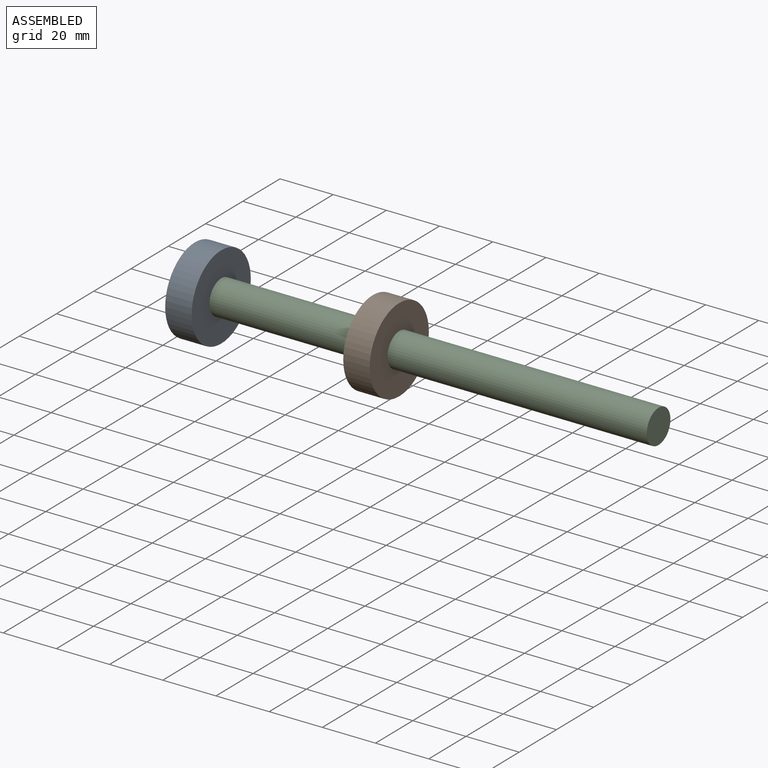
[diagram: assembled view]
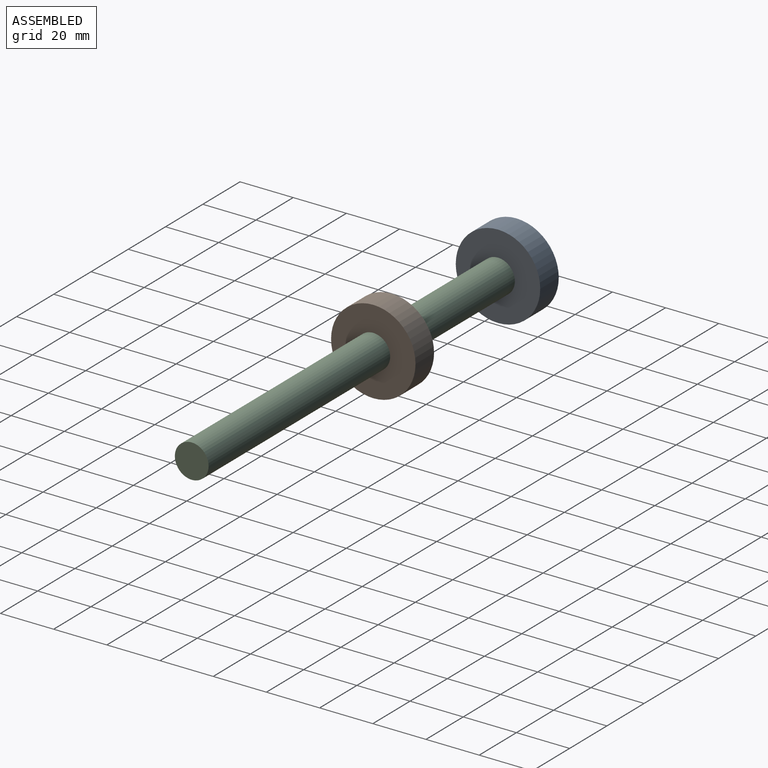
[diagram: assembled view, second angle]
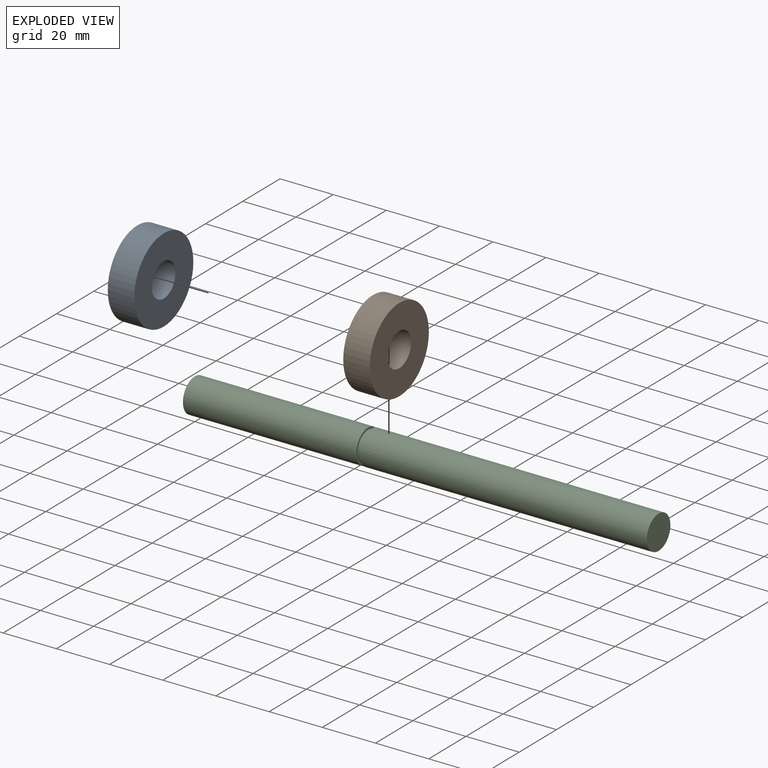
[diagram: exploded view]
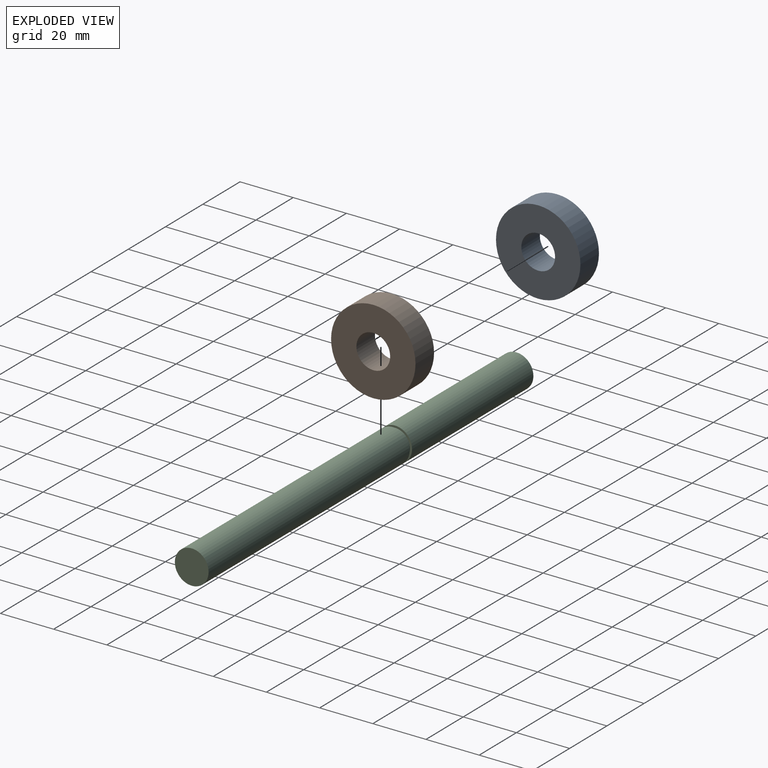
[diagram: exploded view, second angle]
ASSEMBLY  parts=3 mates=4
PART A: 4 faces, bbox 31.8x10x31.8 mm
  f0: cylinder r=6.35mm len=12.7mm, axis (0,1,0), area 397mm2, adj f2,f3
  f1: cylinder r=15.88mm len=31.75mm, axis (0,1,0), area 992.5mm2, adj f2,f3
  f2: plane 31.75x31.75mm, normal (0,-1,0), area 665.1mm2, adj f0,f1
  f3: plane 31.75x31.75mm, normal (0,1,0), area 665.1mm2, adj f0,f1
PART B: same geometry as A
PART C: 7 faces, bbox 12.7x174.4x12.7 mm
  f0: cylinder r=6.35mm len=65.16mm, axis (0,1,0), area 2599.6mm2, adj f1,f2
  f1: plane 12.7x12.7mm, normal (0,-1,0), area 28.6mm2, adj f0,f3
  f2: plane 12.7x12.7mm, normal (0,1,0), area 126.7mm2, adj f0
  f3: cylinder r=5.59mm len=11.18mm, axis (0,1,0), area 45.6mm2, adj f1,f6
  f4: cylinder r=6.35mm len=107.95mm, axis (0,1,0), area 4307mm2, adj f5,f6
  f5: plane 12.7x12.7mm, normal (0,-1,0), area 126.7mm2, adj f4
  f6: plane 12.7x12.7mm, normal (0,1,0), area 28.6mm2, adj f3,f4
PLACE A rot(axis=(0.58,-0.58,0.58),120deg) t=(0,0,0)mm
PLACE B rot(axis=(0.58,-0.58,0.58),120deg) t=(66.96,0,0)mm
PLACE C rot(axis=(0.58,-0.58,0.58),120deg) t=(0,0,0)mm
MATE cylindrical B.f1 <-> C.f4  axis (-1,0,0) through (71.93,0,0)mm
MATE planar C.f0 <-> A.f1  axis (-1,0,0) through (0,0,0)mm
MATE planar B.f1 <-> C.f4  axis (-1,0,0) through (66.96,0,0)mm
MATE cylindrical A.f0 <-> C.f0  axis (-1,0,0) through (0,0,0)mm
